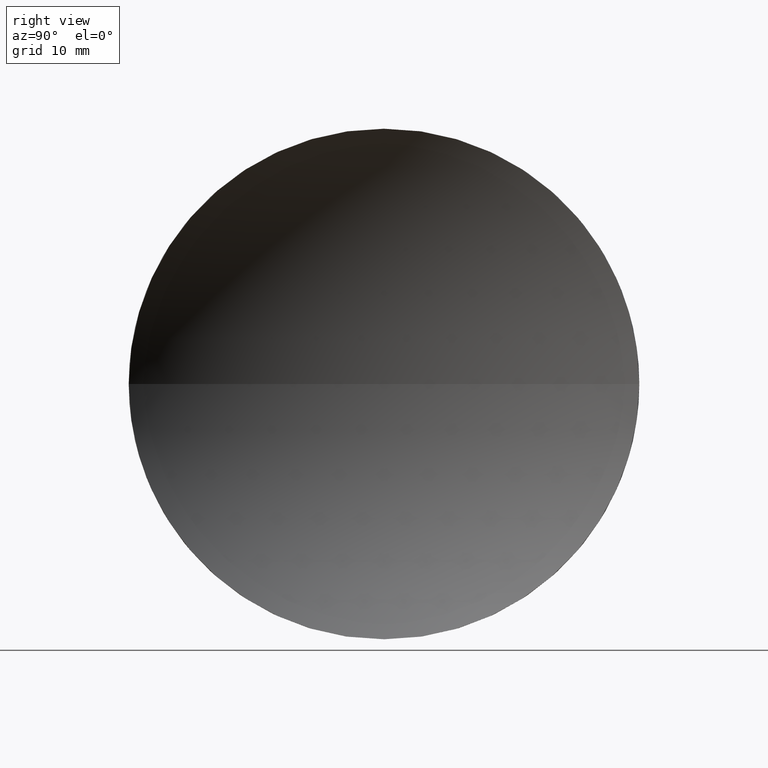
[diagram: clean part render]
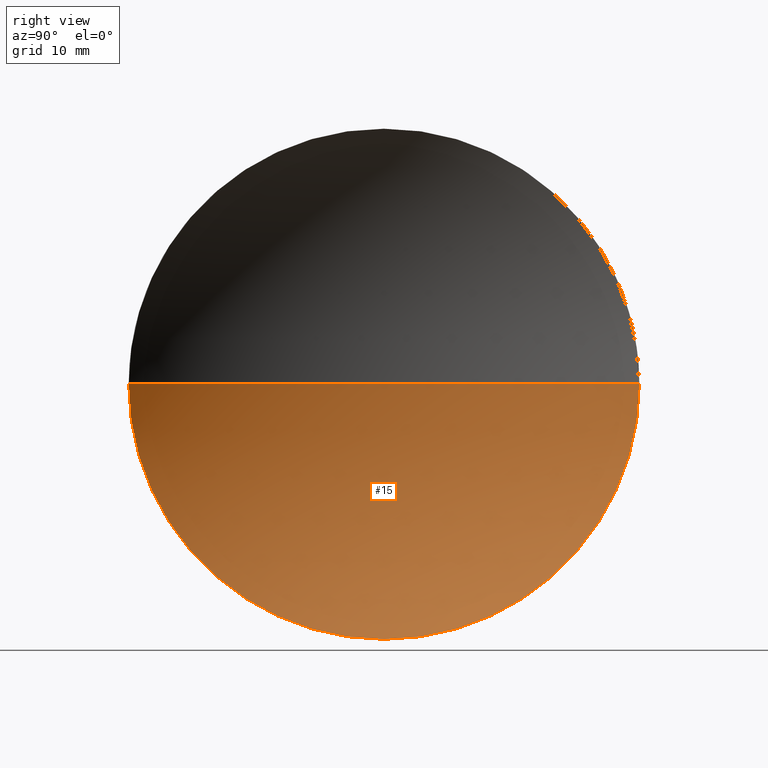
[diagram: same view with one face highlighted and labeled with its STEP entity id]
A machine part, right view. The second image highlights one B-rep face of the part: STEP entity #15.
In plain terms, the highlighted spherical surface has radius 41.3 mm.
Its self-contained STEP definition (entity closure, byte-faithful):
#6 = CARTESIAN_POINT ( 'NONE',  ( 116.7394371346435000, 65.15563045701520700, 0.0000000000000000000 ) ) ;
#9 = DIRECTION ( 'NONE',  ( -1.000000000000000000, 0.0000000000000000000, 0.0000000000000000000 ) ) ;
#10 = DIRECTION ( 'NONE',  ( 0.0000000000000000000, 0.0000000000000000000, -1.000000000000000000 ) ) ;
#12 = DIRECTION ( 'NONE',  ( 0.0000000000000000000, -1.224646799147353200E-016, 1.000000000000000000 ) ) ;
#14 = EDGE_CURVE ( 'NONE', #49, #55, #74, .T. ) ;
#15 = ADVANCED_FACE ( 'NONE', ( #179 ), #172, .F. ) ;
#20 = CIRCLE ( 'NONE', #21, 24.99999999999999300 ) ;
#21 = AXIS2_PLACEMENT_3D ( 'NONE', #41, #125, #180 ) ;
#23 = DIRECTION ( 'NONE',  ( 0.0000000000000000000, -1.000000000000000000, 0.0000000000000000000 ) ) ;
#26 = ORIENTED_EDGE ( 'NONE', *, *, #120, .F. ) ;
#33 = AXIS2_PLACEMENT_3D ( 'NONE', #95, #10, #9 ) ;
#35 = CARTESIAN_POINT ( 'NONE',  ( 125.1655873448789900, 65.15563045701519200, 0.0000000000000000000 ) ) ;
#41 = CARTESIAN_POINT ( 'NONE',  ( 125.1655873448789900, 65.15563045701519200, 0.0000000000000000000 ) ) ;
#44 = EDGE_LOOP ( 'NONE', ( #150, #62, #159, #26 ) ) ;
#49 = VERTEX_POINT ( 'NONE', #166 ) ;
#50 = CARTESIAN_POINT ( 'NONE',  ( 125.1655873448789900, 90.15563045701519200, 3.061616997868381500E-015 ) ) ;
#52 = EDGE_CURVE ( 'NONE', #126, #164, #59, .T. ) ;
#55 = VERTEX_POINT ( 'NONE', #6 ) ;
#59 = CIRCLE ( 'NONE', #72, 24.99999999999999300 ) ;
#62 = ORIENTED_EDGE ( 'NONE', *, *, #162, .T. ) ;
#72 = AXIS2_PLACEMENT_3D ( 'NONE', #35, #75, #136 ) ;
#74 = CIRCLE ( 'NONE', #33, 41.30000000000000400 ) ;
#75 = DIRECTION ( 'NONE',  ( -1.000000000000000000, -0.0000000000000000000, -0.0000000000000000000 ) ) ;
#85 = AXIS2_PLACEMENT_3D ( 'NONE', #137, #134, #23 ) ;
#95 = CARTESIAN_POINT ( 'NONE',  ( 158.0394371346434900, 65.15563045701520700, 0.0000000000000000000 ) ) ;
#120 = EDGE_CURVE ( 'NONE', #164, #49, #20, .T. ) ;
#125 = DIRECTION ( 'NONE',  ( -1.000000000000000000, -0.0000000000000000000, -0.0000000000000000000 ) ) ;
#126 = VERTEX_POINT ( 'NONE', #50 ) ;
#134 = DIRECTION ( 'NONE',  ( 0.0000000000000000000, 0.0000000000000000000, 1.000000000000000000 ) ) ;
#136 = DIRECTION ( 'NONE',  ( 0.0000000000000000000, 0.0000000000000000000, 1.000000000000000000 ) ) ;
#137 = CARTESIAN_POINT ( 'NONE',  ( 158.0394371346434900, 65.15563045701520700, 0.0000000000000000000 ) ) ;
#142 = CARTESIAN_POINT ( 'NONE',  ( 125.1655873448789900, 65.15563045701519200, -24.99999999999999300 ) ) ;
#144 = AXIS2_PLACEMENT_3D ( 'NONE', #154, #12, #167 ) ;
#150 = ORIENTED_EDGE ( 'NONE', *, *, #52, .F. ) ;
#154 = CARTESIAN_POINT ( 'NONE',  ( 158.0394371346434900, 65.15563045701520700, 0.0000000000000000000 ) ) ;
#159 = ORIENTED_EDGE ( 'NONE', *, *, #14, .F. ) ;
#162 = EDGE_CURVE ( 'NONE', #126, #55, #170, .T. ) ;
#164 = VERTEX_POINT ( 'NONE', #142 ) ;
#166 = CARTESIAN_POINT ( 'NONE',  ( 125.1655873448789900, 40.15563045701520700, 0.0000000000000000000 ) ) ;
#167 = DIRECTION ( 'NONE',  ( 0.0000000000000000000, -1.000000000000000000, -1.224646799147353200E-016 ) ) ;
#170 = CIRCLE ( 'NONE', #144, 41.30000000000000400 ) ;
#172 = SPHERICAL_SURFACE ( 'NONE', #85, 41.30000000000000400 ) ;
#179 = FACE_OUTER_BOUND ( 'NONE', #44, .T. ) ;
#180 = DIRECTION ( 'NONE',  ( 0.0000000000000000000, 0.0000000000000000000, 1.000000000000000000 ) ) ;